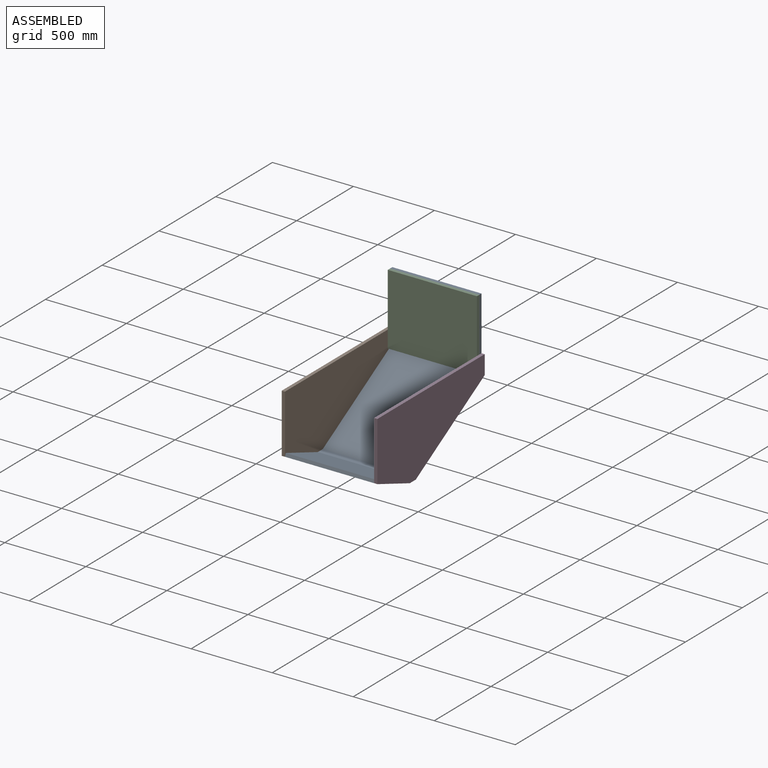
[diagram: assembled view]
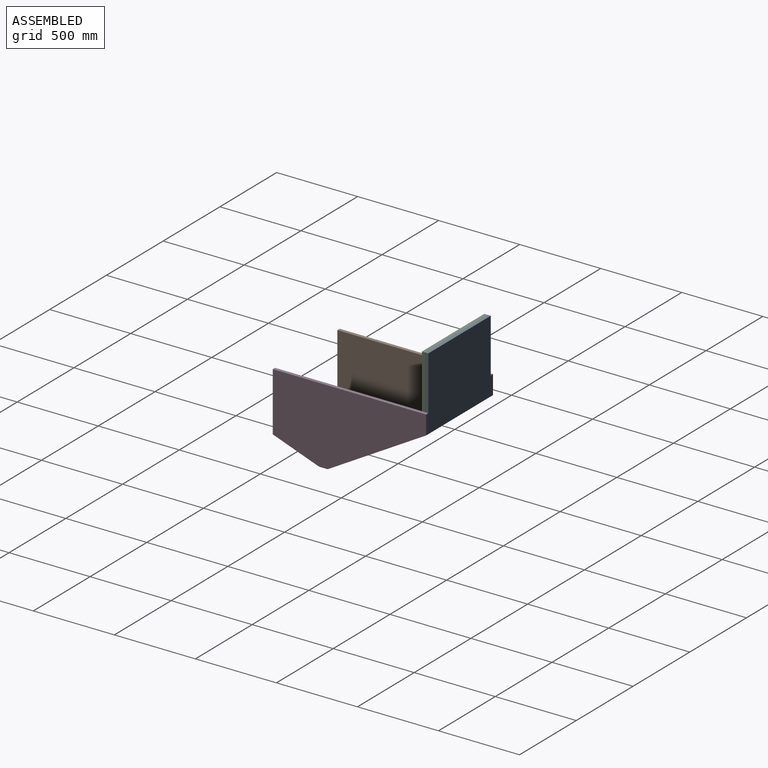
[diagram: assembled view, second angle]
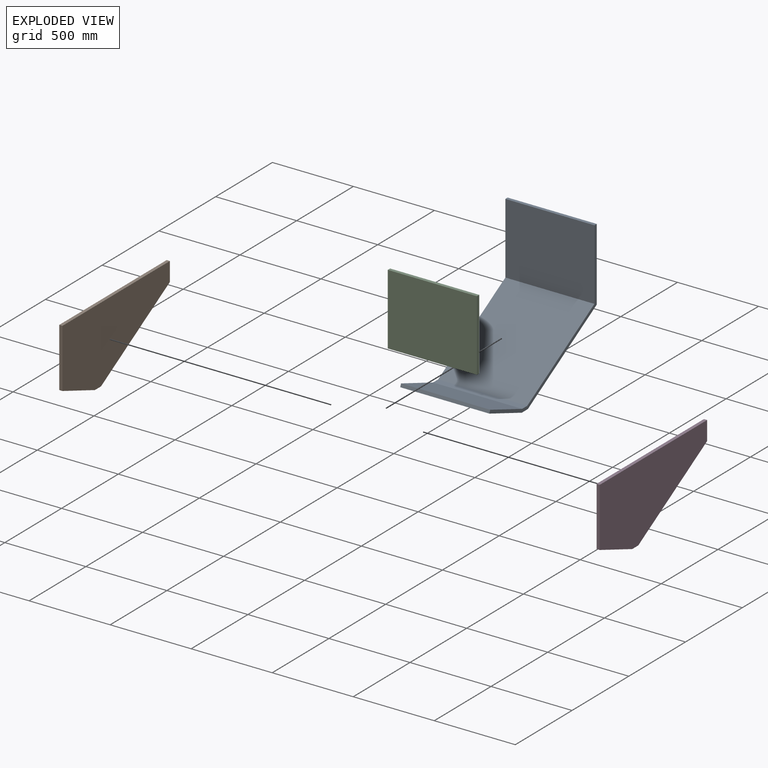
[diagram: exploded view]
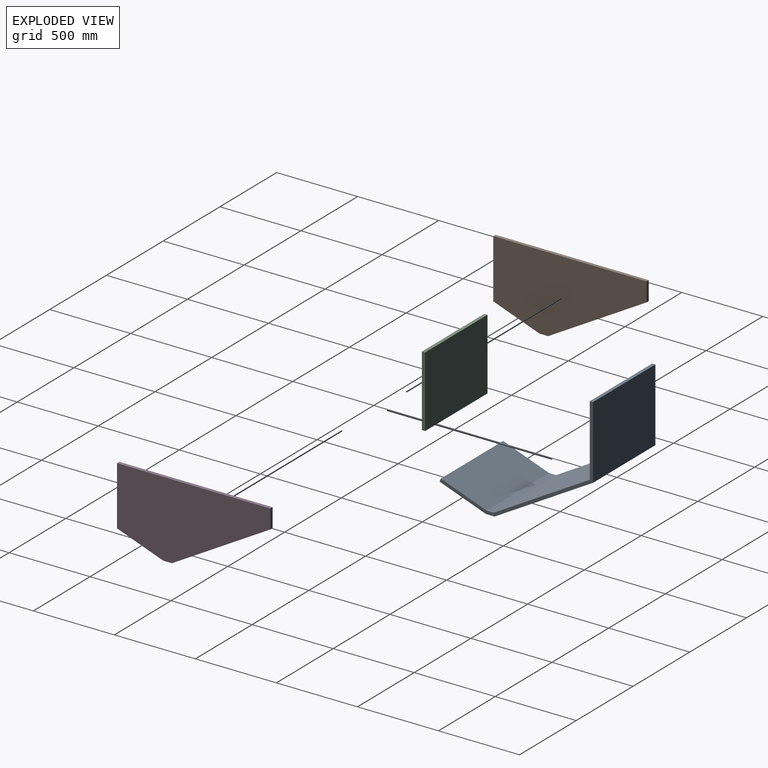
[diagram: exploded view, second angle]
ASSEMBLY  parts=4 mates=9
PART A: 12 faces, bbox 550x946.2x800.6 mm
  f0: plane 946.19x800.57mm, normal (-1,0,0), area 29760.6mm2, adj f1,f2,f3,f4,f5,f6,f7,f9
  f1: plane 592.56x550mm, normal (0,-0.5,0.87), area 376324.6mm2, adj f0,f2,f8,f9
  f2: plane 550x44.43mm, normal (0,0,1), area 24435.2mm2, adj f0,f1,f3,f8
  f3: plane 550x282.37mm, normal (0,0.34,0.94), area 165269mm2, adj f0,f2,f4,f8
  f4: plane 550x18.79mm, normal (0,-0.94,0.34), area 11000mm2, adj f0,f3,f5,f8
  f5: plane 550x285.68mm, normal (0,-0.34,-0.94), area 167208.6mm2, adj f0,f4,f6,f8
  f6: plane 550x53.31mm, normal (0,0,-1), area 29322.2mm2, adj f0,f5,f7,f8
  f7: plane 607.2x550mm, normal (0,0.5,-0.87), area 385622.9mm2, adj f0,f6,f8,f10
  f8: plane 946.19x800.57mm, normal (1,0,0), area 29760.6mm2, adj f1,f2,f3,f4,f5,f6,f7,f9
  f9: plane 550x438.45mm, normal (0,-1,0), area 241149.1mm2, adj f0,f1,f8,f11
  f10: plane 550x450mm, normal (0,1,0), area 247500mm2, adj f0,f7,f8,f11
  f11: plane 550x20mm, normal (0,0,1), area 11000mm2, adj f0,f8,f9,f10
PART B: 8 faces, bbox 20x946.2x467.4 mm
  f0: plane 116.83x20mm, normal (0,1,0), area 2336.5mm2, adj f1,f5,f6,f7
  f1: plane 946.19x20mm, normal (0,0,1), area 18923.9mm2, adj f0,f2,f6,f7
  f2: plane 363.41x20mm, normal (0,-1,0), area 7268.3mm2, adj f1,f3,f6,f7
  f3: plane 285.68x103.98mm, normal (0,-0.34,-0.94), area 6080.3mm2, adj f2,f4,f6,f7
  f4: plane 53.31x20mm, normal (0,0,-1), area 1066.3mm2, adj f3,f5,f6,f7
  f5: plane 607.2x350.57mm, normal (0,0.5,-0.87), area 14022.6mm2, adj f0,f4,f6,f7
  f6: plane 946.19x467.39mm, normal (-1,0,0), area 320959.7mm2, adj f0,f1,f2,f3,f4,f5
  f7: plane 946.19x467.39mm, normal (1,0,0), area 320959.7mm2, adj f0,f1,f2,f3,f4,f5
PART C: 6 faces, bbox 550x20x438.5 mm
  f0: plane 550x20mm, normal (0,0,1), area 11000mm2, adj f1,f3,f4,f5
  f1: plane 438.45x20mm, normal (-1,0,0), area 8769.1mm2, adj f0,f2,f4,f5
  f2: plane 550x20mm, normal (0,0,-1), area 11000mm2, adj f1,f3,f4,f5
  f3: plane 438.45x20mm, normal (1,0,0), area 8769.1mm2, adj f0,f2,f4,f5
  f4: plane 550x438.45mm, normal (0,-1,0), area 241149.1mm2, adj f0,f1,f2,f3
  f5: plane 550x438.45mm, normal (0,1,0), area 241149.1mm2, adj f0,f1,f2,f3
PART D: same geometry as B
PLACE A t=(0,164.63,529.79)mm
PLACE B t=(0,164.63,529.79)mm
PLACE C t=(0,164.63,529.79)mm
PLACE D t=(570,164.63,529.79)mm
MATE planar C.f5 <-> A.f9  axis (0,1,0) through (0,859.63,916.13)mm
MATE planar D.f0 <-> A.f10  axis (0,1,0) through (275,879.63,802.18)mm
MATE planar B.f7 <-> A.f0  axis (1,0,0) through (-275,334.26,616.44)mm
MATE planar B.f0 <-> A.f10  axis (0,1,0) through (-285,879.63,743.77)mm
MATE planar B.f4 <-> A.f6  axis (0,0,-1) through (-285,245.78,334.79)mm
MATE planar D.f6 <-> A.f8  axis (-1,0,0) through (275,576.03,510.07)mm
MATE planar D.f4 <-> A.f6  axis (0,0,-1) through (285,245.78,334.79)mm
MATE planar A.f8 <-> C.f3  axis (1,0,0) through (275,548.91,605.57)mm
MATE planar C.f0 <-> A.f11  axis (0,0,1) through (0,849.63,1135.35)mm
